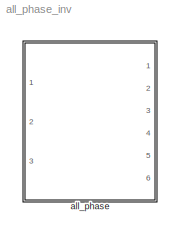
MODEL all_phase_inv
KIND model
CONFIG AbsTol = auto
CONFIG FixedStep = auto
CONFIG MaxStep = auto
CONFIG MinStep = auto
CONFIG RelTol = 1e-3
CONFIG Solver = ode45
CONFIG SolverMode = Auto
CONFIG StartTime = 0.0
CONFIG StopTime = 0.5
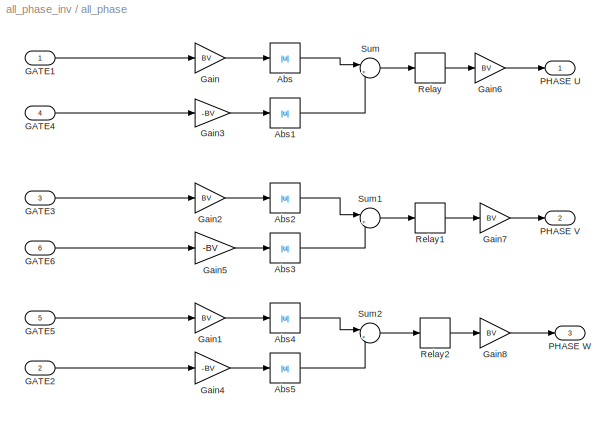
BLOCK [SubSystem] all_phase
  MaskDescription = This is an inverter. Double click the block to enter the battery voltage
  MaskEnableString = on
  MaskIconFrame = on
  MaskIconOpaque = on
  MaskIconRotate = none
  MaskIconUnits = autoscale
  MaskPromptString = Battery voltage for excitation
  MaskStyleString = edit
  MaskToolTipString = on
  MaskTunableValueString = on
  MaskValueString = 1
  MaskVariables = BV=@1;
  MaskVisibilityString = on
  Ports = [6, 3]
  RTWFcnNameOpts = Auto
  RTWFileNameOpts = Auto
  RTWSystemCode = Auto
  ShowPortLabels = on
  TreatAsAtomicUnit = off
BLOCK [Abs] all_phase/Abs
  SaturateOnIntegerOverflow = on
BLOCK [Abs] all_phase/Abs1
  SaturateOnIntegerOverflow = on
BLOCK [Abs] all_phase/Abs2
  SaturateOnIntegerOverflow = on
BLOCK [Abs] all_phase/Abs3
  SaturateOnIntegerOverflow = on
BLOCK [Abs] all_phase/Abs4
  SaturateOnIntegerOverflow = on
BLOCK [Abs] all_phase/Abs5
  SaturateOnIntegerOverflow = on
BLOCK [Inport] all_phase/GATE1
  Interpolate = on
  Port = 1
BLOCK [Inport] all_phase/GATE2
  Interpolate = on
  Port = 2
BLOCK [Inport] all_phase/GATE3
  Interpolate = on
  Port = 3
BLOCK [Inport] all_phase/GATE4
  Interpolate = on
  Port = 4
BLOCK [Inport] all_phase/GATE5
  Interpolate = on
  Port = 5
BLOCK [Inport] all_phase/GATE6
  Interpolate = on
  Port = 6
BLOCK [Gain] all_phase/Gain
  Gain = BV
  Multiplication = Element-wise(K.*u)
  SaturateOnIntegerOverflow = on
BLOCK [Gain] all_phase/Gain1
  Gain = BV
  Multiplication = Element-wise(K.*u)
  SaturateOnIntegerOverflow = on
BLOCK [Gain] all_phase/Gain2
  Gain = BV
  Multiplication = Element-wise(K.*u)
  SaturateOnIntegerOverflow = on
BLOCK [Gain] all_phase/Gain3
  Gain = -BV
  Multiplication = Element-wise(K.*u)
  SaturateOnIntegerOverflow = on
BLOCK [Gain] all_phase/Gain4
  Gain = -BV
  Multiplication = Element-wise(K.*u)
  SaturateOnIntegerOverflow = on
BLOCK [Gain] all_phase/Gain5
  Gain = -BV
  Multiplication = Element-wise(K.*u)
  SaturateOnIntegerOverflow = on
BLOCK [Gain] all_phase/Gain6
  Gain = BV
  Multiplication = Element-wise(K.*u)
  SaturateOnIntegerOverflow = on
BLOCK [Gain] all_phase/Gain7
  Gain = BV
  Multiplication = Element-wise(K.*u)
  SaturateOnIntegerOverflow = on
BLOCK [Gain] all_phase/Gain8
  Gain = BV
  Multiplication = Element-wise(K.*u)
  SaturateOnIntegerOverflow = on
BLOCK [Outport] all_phase/PHASE U
  InitialOutput = []
  OutputWhenDisabled = held
  Port = 1
BLOCK [Outport] all_phase/PHASE V
  InitialOutput = []
  OutputWhenDisabled = held
  Port = 2
BLOCK [Outport] all_phase/PHASE W
  InitialOutput = []
  OutputWhenDisabled = held
  Port = 3
BLOCK [Relay] all_phase/Relay
  OffOutputValue = 0
  OffSwitchValue = 0
  OnOutputValue = 1
  OnSwitchValue = 0
BLOCK [Relay] all_phase/Relay1
  OffOutputValue = 0
  OffSwitchValue = 0
  OnOutputValue = 1
  OnSwitchValue = 0
BLOCK [Relay] all_phase/Relay2
  OffOutputValue = 0
  OffSwitchValue = 0
  OnOutputValue = 1
  OnSwitchValue = 0
BLOCK [Sum] all_phase/Sum
  IconShape = round
  Inputs = |+-
  Ports = [2, 1]
  SaturateOnIntegerOverflow = on
BLOCK [Sum] all_phase/Sum1
  IconShape = round
  Inputs = |+-
  Ports = [2, 1]
  SaturateOnIntegerOverflow = on
BLOCK [Sum] all_phase/Sum2
  IconShape = round
  Inputs = |+-
  Ports = [2, 1]
  SaturateOnIntegerOverflow = on
LINE all_phase/Abs1:1 -> all_phase/Sum:2
LINE all_phase/Abs2:1 -> all_phase/Sum1:1
LINE all_phase/Abs3:1 -> all_phase/Sum1:2
LINE all_phase/Abs4:1 -> all_phase/Sum2:1
LINE all_phase/Abs5:1 -> all_phase/Sum2:2
LINE all_phase/Abs:1 -> all_phase/Sum:1
LINE all_phase/GATE1:1 -> all_phase/Gain:1
LINE all_phase/GATE2:1 -> all_phase/Gain4:1
LINE all_phase/GATE3:1 -> all_phase/Gain2:1
LINE all_phase/GATE4:1 -> all_phase/Gain3:1
LINE all_phase/GATE5:1 -> all_phase/Gain1:1
LINE all_phase/GATE6:1 -> all_phase/Gain5:1
LINE all_phase/Gain1:1 -> all_phase/Abs4:1
LINE all_phase/Gain2:1 -> all_phase/Abs2:1
LINE all_phase/Gain3:1 -> all_phase/Abs1:1
LINE all_phase/Gain4:1 -> all_phase/Abs5:1
LINE all_phase/Gain5:1 -> all_phase/Abs3:1
LINE all_phase/Gain6:1 -> all_phase/PHASE U:1
LINE all_phase/Gain7:1 -> all_phase/PHASE V:1
LINE all_phase/Gain8:1 -> all_phase/PHASE W:1
LINE all_phase/Gain:1 -> all_phase/Abs:1
LINE all_phase/Relay1:1 -> all_phase/Gain7:1
LINE all_phase/Relay2:1 -> all_phase/Gain8:1
LINE all_phase/Relay:1 -> all_phase/Gain6:1
LINE all_phase/Sum1:1 -> all_phase/Relay1:1
LINE all_phase/Sum2:1 -> all_phase/Relay2:1
LINE all_phase/Sum:1 -> all_phase/Relay:1
